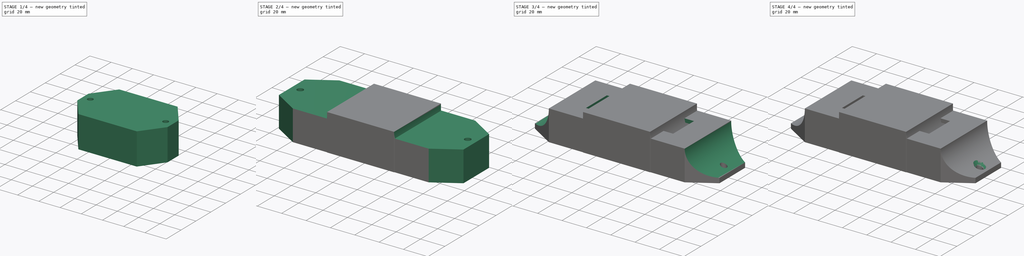
[diagram: build sequence overview — one tinted view per stage of 4, left to right]
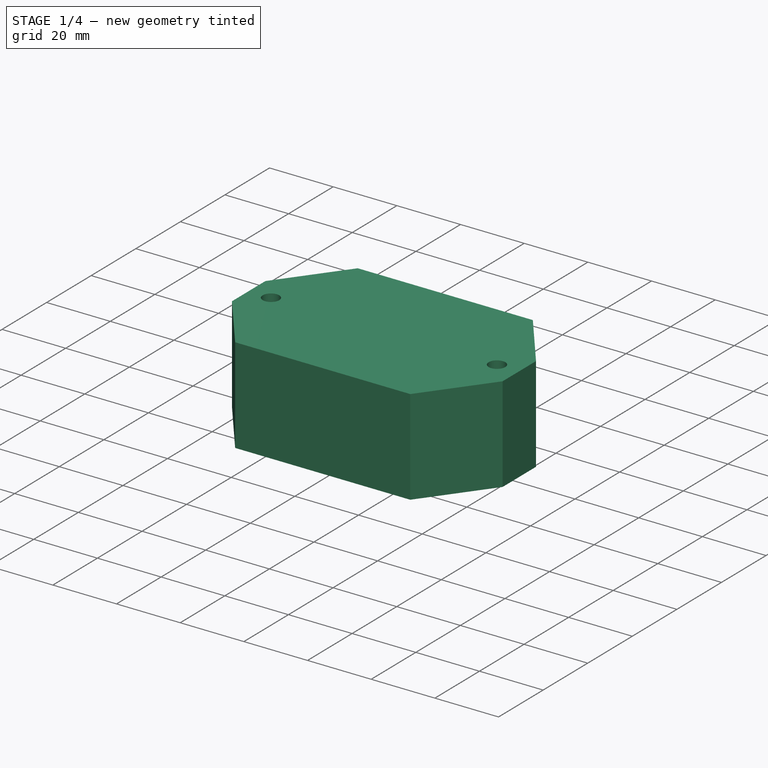
[diagram: stage 1 of 4 — iso view after this stage's code; geometry added in this stage tinted green]
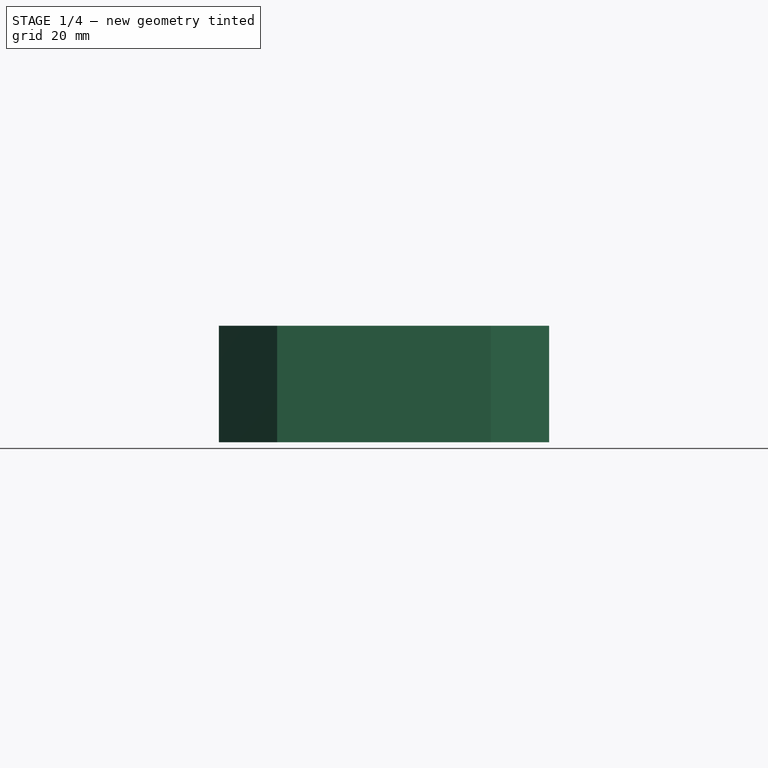
[diagram: stage 1 of 4 — front view after this stage's code; geometry added in this stage tinted green]
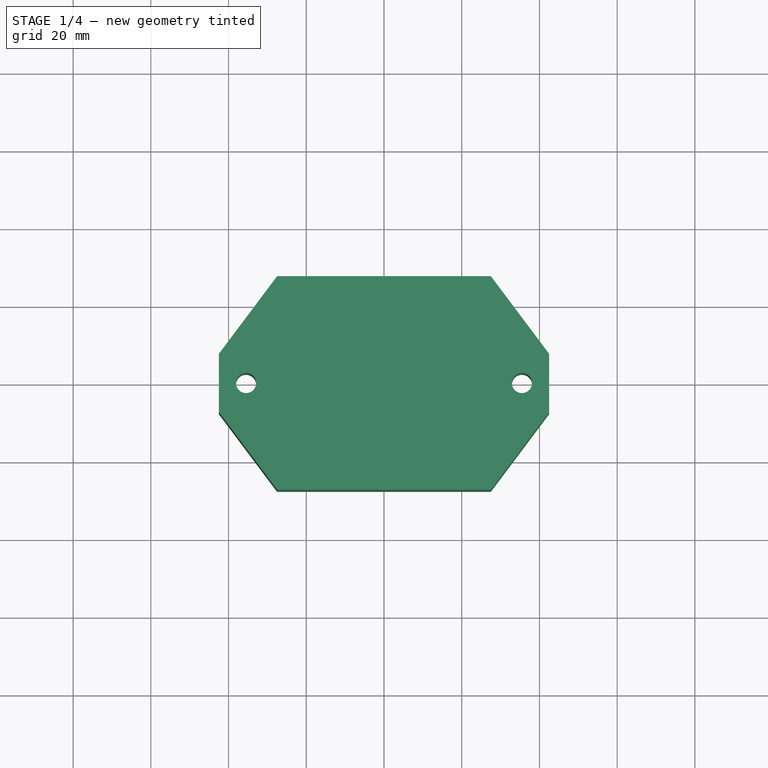
[diagram: stage 1 of 4 — top view after this stage's code; geometry added in this stage tinted green]
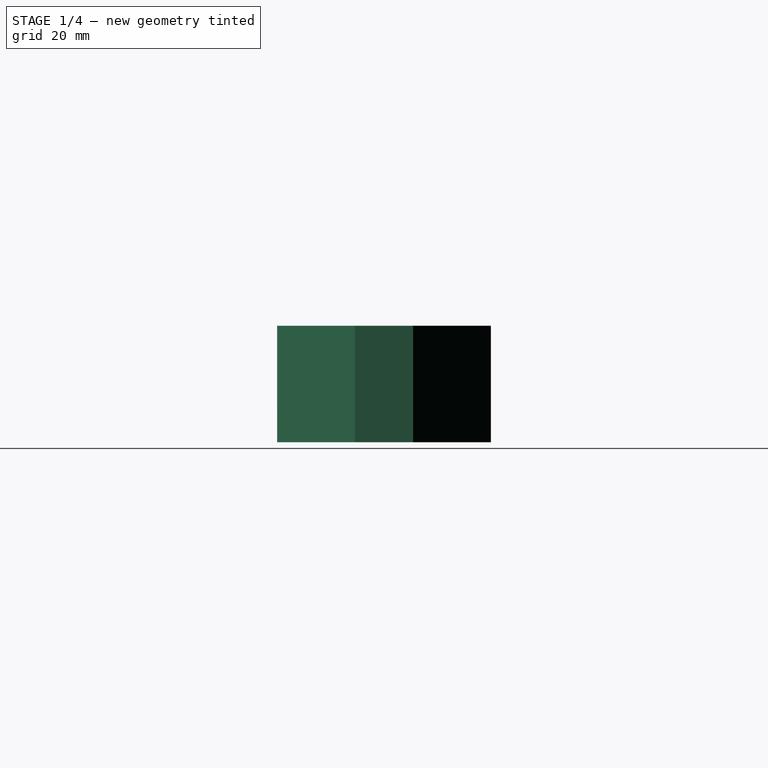
[diagram: stage 1 of 4 — right view after this stage's code; geometry added in this stage tinted green]
FCSTD DOCUMENT  (FreeCAD 1.0RUnknown)
Label: case
License: All rights reserved
LicenseURL: http://en.wikipedia.org/wiki/All_rights_reserved
objects: Sketcher::SketchObject×8, PartDesign::Pocket×5, PartDesign::Pad×3, PartDesign::Chamfer×2, PartDesign::Body×2, Spreadsheet::Sheet×1
note: 48 computed .brp shape members not serialized (recipe doc carries the construction recipe); baked Part::Feature solids carry a one-line shape summary decoded from their .brp

FEATURE [PartDesign::Body] Body  label="lcd"
  AllowCompound = false
  Group = -> [Sketch,Pad,Sketch001,Pocket,Sketch002,Pocket001,Sketch003,Pocket002,Sketch004,Pad001,Chamfer]
  Origin = -> Origin
  Tip = -> Chamfer
FEATURE [Sketcher::SketchObject] Sketch005
  ArcFitTolerance = 1e-06
  AttachmentSupport = -> [XY_Plane001]
  FullyConstrained = true
  MakeInternals = false
  MapMode = 5
  sketch-geometry (12):
    g0: LineSegment [constr] StartX=-27.5 StartY=27.5 StartZ=0 EndX=-27.5 EndY=-27.5 EndZ=0
    g1: LineSegment StartX=-27.5 StartY=-27.5 StartZ=0 EndX=27.5 EndY=-27.5 EndZ=0
    g2: LineSegment [constr] StartX=27.5 StartY=-27.5 StartZ=0 EndX=27.5 EndY=27.5 EndZ=0
    g3: LineSegment StartX=27.5 StartY=27.5 StartZ=0 EndX=-27.5 EndY=27.5 EndZ=0
    g4: LineSegment StartX=-27.5 StartY=27.5 StartZ=0 EndX=-42.5 EndY=7.5 EndZ=0
    g5: LineSegment StartX=-42.5 StartY=7.5 StartZ=0 EndX=-42.5 EndY=-7.5 EndZ=0
    g6: LineSegment StartX=-42.5 StartY=-7.5 StartZ=0 EndX=-27.5 EndY=-27.5 EndZ=0
    g7: LineSegment StartX=27.5 StartY=27.5 StartZ=0 EndX=42.5 EndY=7.5 EndZ=0
    g8: LineSegment StartX=42.5 StartY=7.5 StartZ=0 EndX=42.5 EndY=-7.5 EndZ=0
    g9: LineSegment StartX=42.5 StartY=-7.5 StartZ=0 EndX=27.5 EndY=-27.5 EndZ=0
    g10: Circle CenterX=-35.5 CenterY=0 CenterZ=0 NormalX=0 NormalY=0 NormalZ=1 AngleXU=0 Radius=2.6
    g11: Circle CenterX=35.5 CenterY=0 CenterZ=0 NormalX=0 NormalY=0 NormalZ=1 AngleXU=0 Radius=2.6
  constraints (31):
    c: Coincident(g0,g1)
    c: Coincident(g1,g2)
    c: Coincident(g2,g3)
    c: Coincident(g3,g0)
    c: Vertical(g0)
    c: Vertical(g2)
    c: Horizontal(g1)
    c: Horizontal(g3)
    c: Symmetric(g0,g1,g-1)
    c: Equal(g3,g0)
    c: DistanceX(g3,g3) = 55
    c: Coincident(g0,g4)
    c: Coincident(g4,g5)
    c: Coincident(g5,g6)
    c: Coincident(g6,g0)
    c: Coincident(g2,g7)
    c: Coincident(g7,g8)
    c: Coincident(g8,g9)
    c: Coincident(g9,g1)
    c: DistanceX(g4,g0) = 15
    c: Symmetric(g4,g5,g-1)
    c: Distance(g5,g5) = 15
    c: Equal(g4,g7)
    c: Symmetric(g7,g8,g-1)
    c: Equal(g8,g5)
    c: PointOnObject(g10,g-1)
    c: Equal(g10,g11)
    c: Diameter(g10) = 5.2
    c: DistanceX(g4,g10) = 7
    c: Symmetric(g10,g11,g-1)
    c: DistanceY(g0,g0) = 55
FEATURE [PartDesign::Pad] Pad002  label="acc_case"
  Direction = (0,0,1)
  Length = 30
  Length2 = 10
  Profile = -> Sketch005
  ReferenceAxis = -> Sketch005 [N_Axis]
  Suppressed = false
  Type = 0
FEATURE [Sketcher::SketchObject] Sketch006
  ArcFitTolerance = 1e-06
  AttachmentSupport = -> [XY_Plane001]
  ExternalGeometry = -> [Sketch005]
  FullyConstrained = true
  MakeInternals = false
  MapMode = 5
  sketch-geometry (4):
    g0: LineSegment StartX=-25.5 StartY=25.5 StartZ=0 EndX=-25.5 EndY=-25.5 EndZ=0
    g1: LineSegment StartX=-25.5 StartY=-25.5 StartZ=0 EndX=25.5 EndY=-25.5 EndZ=0
    g2: LineSegment StartX=25.5 StartY=-25.5 StartZ=0 EndX=25.5 EndY=25.5 EndZ=0
    g3: LineSegment StartX=25.5 StartY=25.5 StartZ=0 EndX=-25.5 EndY=25.5 EndZ=0
  constraints (11):
    c: Coincident(g0,g1)
    c: Coincident(g1,g2)
    c: Coincident(g2,g3)
    c: Coincident(g3,g0)
    c: Vertical(g0)
    c: Vertical(g2)
    c: Horizontal(g1)
    c: Horizontal(g3)
    c: Symmetric(g0,g1,g-1)
    c: DistanceX(g-3,g0) = 2
    c: DistanceY(g0,g-3) = 2
FEATURE [PartDesign::Pocket] Pocket003
  BaseFeature = -> Pad002
  Direction = (0,0,-1)
  Length = 28
  Length2 = 5
  Profile = -> Sketch006
  ReferenceAxis = -> Sketch006 [N_Axis]
  Reversed = true
  Suppressed = false
  Type = 0
  expr: Length = <<acc_case>>.Length - 2 mm
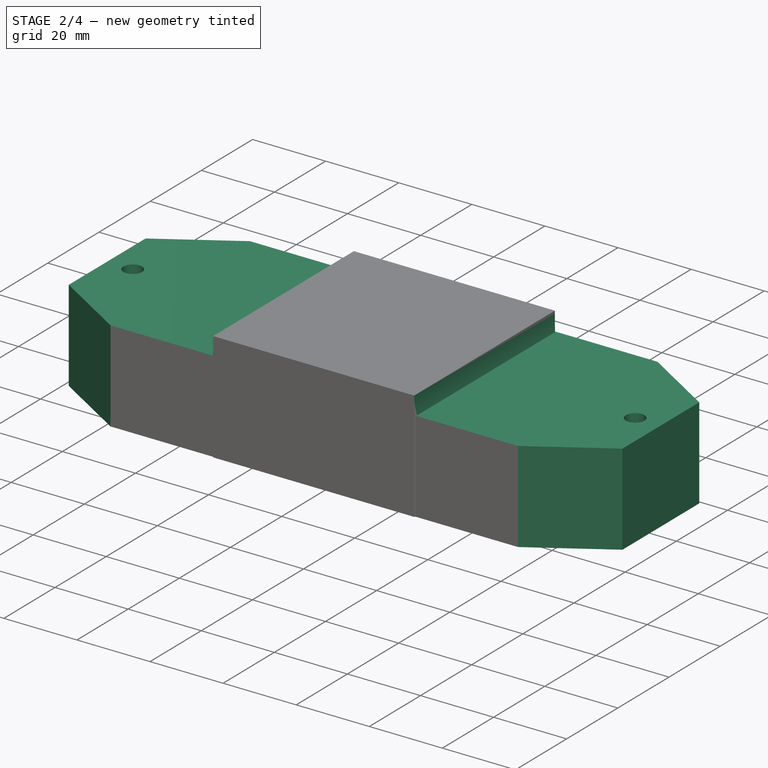
[diagram: stage 2 of 4 — iso view after this stage's code; geometry added in this stage tinted green]
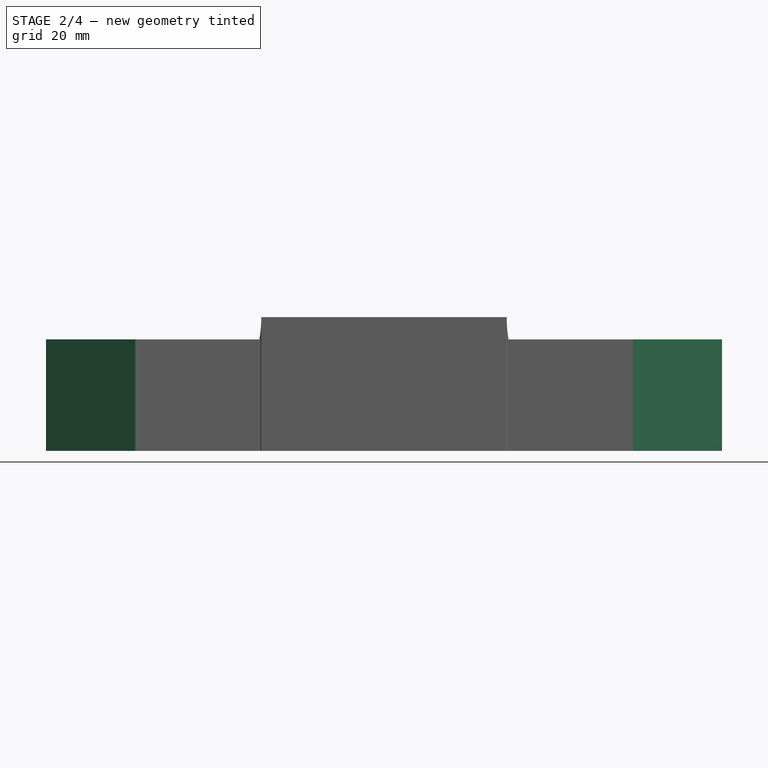
[diagram: stage 2 of 4 — front view after this stage's code; geometry added in this stage tinted green]
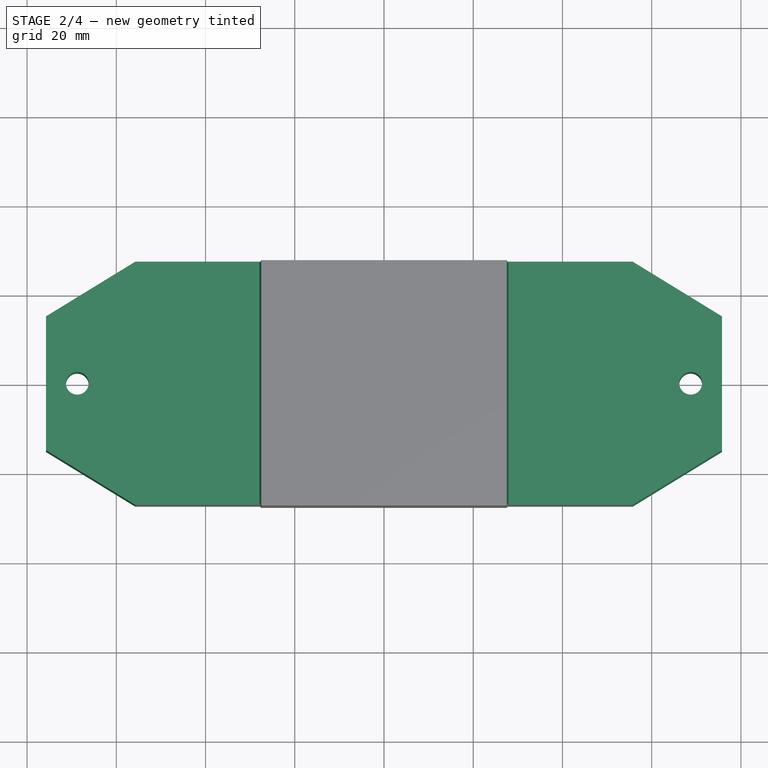
[diagram: stage 2 of 4 — top view after this stage's code; geometry added in this stage tinted green]
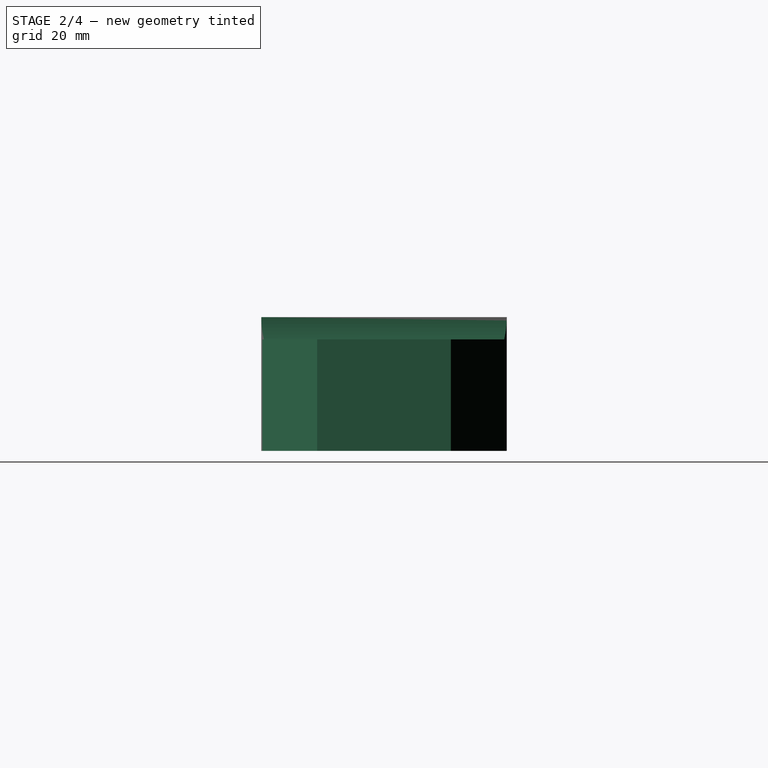
[diagram: stage 2 of 4 — right view after this stage's code; geometry added in this stage tinted green]
FEATURE [Sketcher::SketchObject] Sketch
  ArcFitTolerance = 1e-06
  AttachmentSupport = -> [XY_Plane]
  FullyConstrained = true
  MakeInternals = false
  MapMode = 5
  expr: Constraints[15] = <<Spreadsheet>>.mount_length
  expr: Constraints[17] = <<Spreadsheet>>.mount_height
  expr: Constraints[22] = <<Spreadsheet>>.mount_length
  expr: Constraints[23] = <<Spreadsheet>>.mount_height
  expr: Constraints[26] = <<Spreadsheet>>.screw_diameter
  expr: Constraints[27] = <<Spreadsheet>>.screw_distance_edge
  expr: Constraints[29] = <<Spreadsheet>>.screw_diameter
  expr: Constraints[30] = <<Spreadsheet>>.screw_distance_edge
  expr: Constraints[8] = <<Spreadsheet>>.box_length
  expr: Constraints[9] = <<Spreadsheet>>.box_height
  sketch-geometry (12):
    g0: LineSegment [constr] StartX=-55.75 StartY=27.25 StartZ=0 EndX=-55.75 EndY=-27.25 EndZ=0
    g1: LineSegment StartX=-55.75 StartY=-27.25 StartZ=0 EndX=55.75 EndY=-27.25 EndZ=0
    g2: LineSegment [constr] StartX=55.75 StartY=-27.25 StartZ=0 EndX=55.75 EndY=27.25 EndZ=0
    g3: LineSegment StartX=55.75 StartY=27.25 StartZ=0 EndX=-55.75 EndY=27.25 EndZ=0
    g4: LineSegment StartX=55.75 StartY=27.25 StartZ=0 EndX=75.75 EndY=15 EndZ=0
    g5: LineSegment StartX=75.75 StartY=15 StartZ=0 EndX=75.75 EndY=-15 EndZ=0
    g6: LineSegment StartX=75.75 StartY=-15 StartZ=0 EndX=55.75 EndY=-27.25 EndZ=0
    g7: LineSegment StartX=-55.75 StartY=27.25 StartZ=0 EndX=-75.75 EndY=15 EndZ=0
    g8: LineSegment StartX=-75.75 StartY=15 StartZ=0 EndX=-75.75 EndY=-15 EndZ=0
    g9: LineSegment StartX=-75.75 StartY=-15 StartZ=0 EndX=-55.75 EndY=-27.25 EndZ=0
    g10: Circle CenterX=-68.75 CenterY=0 CenterZ=0 NormalX=0 NormalY=0 NormalZ=1 AngleXU=0 Radius=2.55
    g11: Circle CenterX=68.75 CenterY=0 CenterZ=0 NormalX=0 NormalY=0 NormalZ=1 AngleXU=0 Radius=2.55
  constraints (31):
    c: Coincident(g0,g1)
    c: Coincident(g1,g2)
    c: Coincident(g2,g3)
    c: Coincident(g3,g0)
    c: Vertical(g0)
    c: Vertical(g2)
    c: Horizontal(g1)
    c: Horizontal(g3)
    c: DistanceX(g3,g3) = 111.5
    c: DistanceY(g0,g0) = 54.5
    c: Symmetric(g0,g1,g-1)
    c: Coincident(g5,g4)
    c: Coincident(g6,g5)
    c: Coincident(g6,g1)
    c: Coincident(g4,g2)
    c: DistanceX(g2,g4) = 20
    c: Symmetric(g4,g5,g-1)
    c: DistanceY(g5,g5) = 30
    c: Coincident(g0,g7)
    c: Coincident(g7,g8)
    c: Coincident(g8,g9)
    c: Symmetric(g7,g8,g-1)
    c: DistanceX(g7,g0) = 20
    c: DistanceY(g8,g8) = 30
    c: Coincident(g9,g0)
    c: PointOnObject(g10,g-1)
    c: Diameter(g10) = 5.1
    c: Distance(g10,g8) = 7
    c: PointOnObject(g11,g-1)
    c: Diameter(g11) = 5.1
    c: Distance(g11,g5) = 7
FEATURE [Spreadsheet::Sheet] Spreadsheet
  cells = A1='space between sides and lcd; B1=20; C1=15; B4='lenght; C4='height; D4='depth; A5='display screen; B5(lcd_length)=71.5; C5(lcd_height)=24.5; A6='box; B6(box_length)==B5 + 2 * B1; C6(box_height)==C5 + 2 * C1; D6(box_depth)=25; A7='wall thickness; B7(thickness)=3; A8='mount; B8(mount_length)=20; C8(mount_height)=30; A9='screw diamter; B9(screw_diameter)=5.1; A10='screw distance from edge; B10(screw_distance_edge)=7; A11='screw pad; B11(screw_pad_length)=75; C11(screw_pad_height)=31; D11(screw_pad_depth)=7
FEATURE [PartDesign::Pad] Pad
  Direction = (0,0,1)
  Length = 25
  Length2 = 10
  Profile = -> Sketch
  ReferenceAxis = -> Sketch [N_Axis]
  Suppressed = false
  Type = 0
  expr: Length = <<Spreadsheet>>.box_depth
FEATURE [Sketcher::SketchObject] Sketch007
  ArcFitTolerance = 1e-06
  AttachmentSupport = -> [XZ_Plane001]
  ExternalGeometry = -> [Pocket003]
  FullyConstrained = true
  MakeInternals = false
  MapMode = 5
  Placement = pos=(0,0,0) rot=(1,0,0;1.5708rad)
  sketch-geometry (4):
    g0: GeomPoint X=-42.5 Y=4 Z=0
    g1: GeomPoint X=42.5 Y=4 Z=0
    g2: Circle CenterX=-57.5333 CenterY=30 CenterZ=0 NormalX=0 NormalY=0 NormalZ=1 AngleXU=0 Radius=30.0333
    g3: Circle CenterX=57.5333 CenterY=30 CenterZ=0 NormalX=0 NormalY=0 NormalZ=1 AngleXU=0 Radius=30.0333
  constraints (9):
    c: PointOnObject(g0,g-3)
    c: PointOnObject(g0,g2)
    c: PointOnObject(g-5,g2)
    c: Distance(g0,g-3) = 4
    c: Symmetric(g0,g1,g-2)
    c: PointOnObject(g1,g3)
    c: PointOnObject(g-7,g3)
    c: Equal(g3,g2)
    c: Tangent(g2,g-4)
FEATURE [PartDesign::Pocket] Pocket004
  BaseFeature = -> Pocket003
  Direction = (0,1,-2e-16)
  Length = 5
  Length2 = 5
  Midplane = true
  Profile = -> Sketch007
  ReferenceAxis = -> Sketch007 [N_Axis]
  Suppressed = false
  Type = 1
FEATURE [PartDesign::Chamfer] Chamfer001
  Angle = 45
  Base = -> Pocket004 [Edge31,Edge35]
  BaseFeature = -> Pocket004
  ChamferType = 0
  FlipDirection = false
  Refine = true
  Size = 1
  Size2 = 1
  SupportTransform = false
  Suppressed = false
  UseAllEdges = false
FEATURE [PartDesign::Body] Body001  label="acc"
  AllowCompound = false
  Group = -> [Sketch005,Pad002,Sketch006,Pocket003,Sketch007,Pocket004,Chamfer001]
  Origin = -> Origin001
  Tip = -> Chamfer001
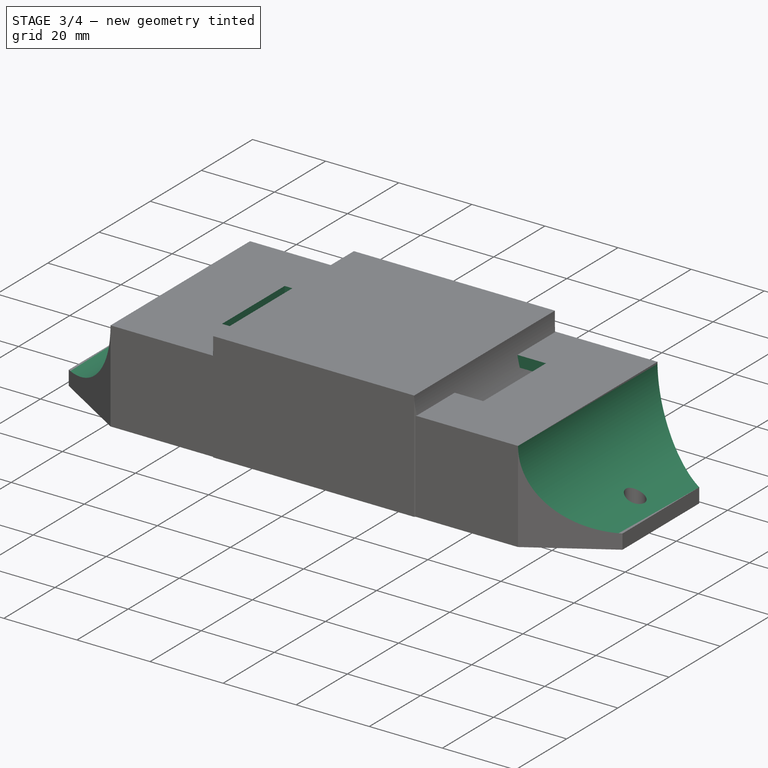
[diagram: stage 3 of 4 — iso view after this stage's code; geometry added in this stage tinted green]
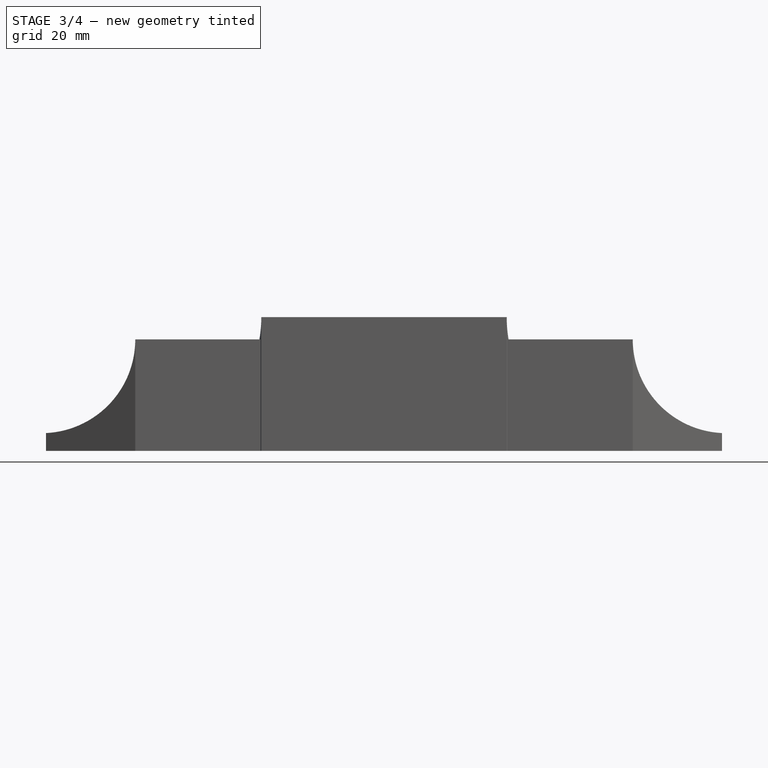
[diagram: stage 3 of 4 — front view after this stage's code; geometry added in this stage tinted green]
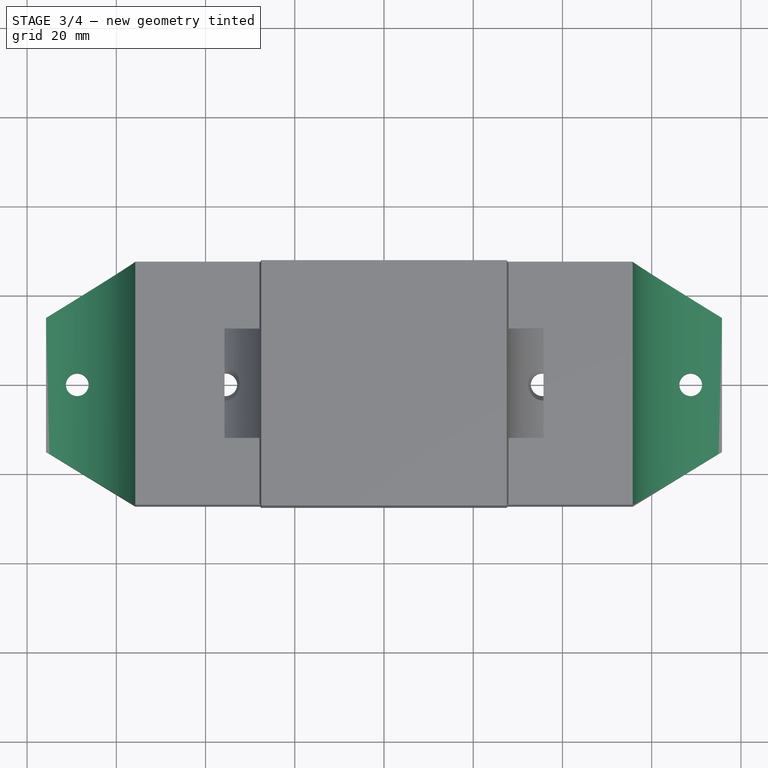
[diagram: stage 3 of 4 — top view after this stage's code; geometry added in this stage tinted green]
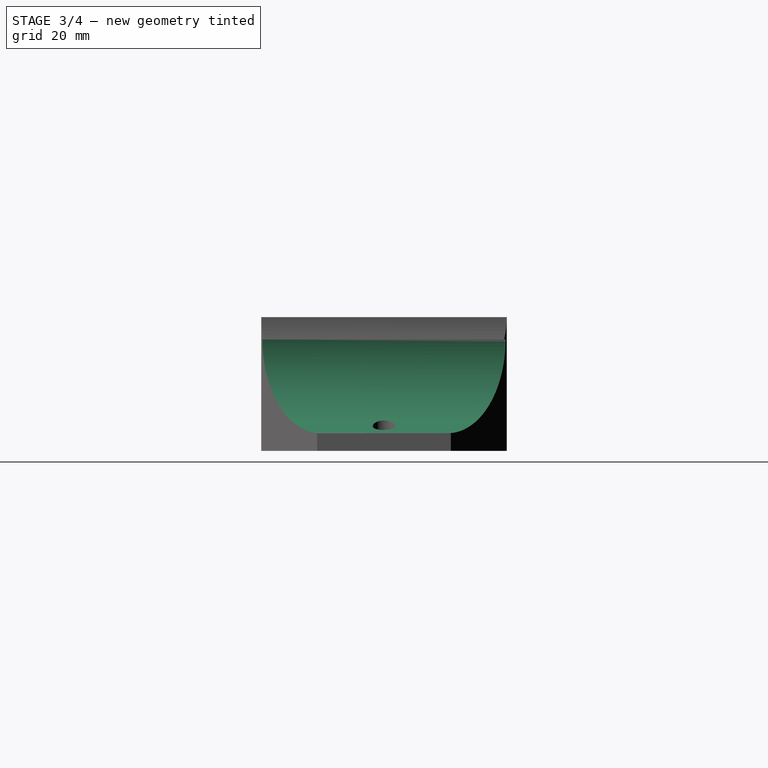
[diagram: stage 3 of 4 — right view after this stage's code; geometry added in this stage tinted green]
FEATURE [Sketcher::SketchObject] Sketch001
  ArcFitTolerance = 1e-06
  AttachmentSupport = -> [XZ_Plane]
  ExternalGeometry = -> [Pad]
  FullyConstrained = true
  MakeInternals = false
  MapMode = 5
  Placement = pos=(0,0,0) rot=(1,0,0;1.5708rad)
  sketch-geometry (4):
    g0: GeomPoint X=-75.75 Y=4 Z=0
    g1: Circle CenterX=-76.775 CenterY=25 CenterZ=0 NormalX=0 NormalY=0 NormalZ=1 AngleXU=0 Radius=21.025
    g2: GeomPoint X=75.75 Y=4 Z=0
    g3: Circle CenterX=76.775 CenterY=25 CenterZ=0 NormalX=0 NormalY=0 NormalZ=1 AngleXU=0 Radius=21.025
  constraints (9):
    c: PointOnObject(g0,g-5)
    c: DistanceY(g-5,g0) = 4
    c: PointOnObject(g0,g1)
    c: PointOnObject(g2,g-4)
    c: DistanceY(g-4,g2) = 4
    c: PointOnObject(g-7,g3)
    c: PointOnObject(g2,g3)
    c: Tangent(g-6,g1) = -1.5708
    c: Equal(g3,g1)
FEATURE [PartDesign::Pocket] Pocket
  BaseFeature = -> Pad
  Direction = (0,1,-2e-16)
  Length = 5
  Length2 = 5
  Midplane = true
  Profile = -> Sketch001
  ReferenceAxis = -> Sketch001 [N_Axis]
  Suppressed = false
  Type = 1
FEATURE [Sketcher::SketchObject] Sketch002
  ArcFitTolerance = 1e-06
  AttachmentSupport = -> [XY_Plane]
  ExternalGeometry = -> [Sketch]
  FullyConstrained = true
  MakeInternals = false
  MapMode = 5
  expr: Constraints[10] = <<Spreadsheet>>.thickness
  expr: Constraints[9] = <<Spreadsheet>>.thickness
  sketch-geometry (4):
    g0: LineSegment StartX=-52.75 StartY=24.25 StartZ=0 EndX=-52.75 EndY=-24.25 EndZ=0
    g1: LineSegment StartX=-52.75 StartY=-24.25 StartZ=0 EndX=52.75 EndY=-24.25 EndZ=0
    g2: LineSegment StartX=52.75 StartY=-24.25 StartZ=0 EndX=52.75 EndY=24.25 EndZ=0
    g3: LineSegment StartX=52.75 StartY=24.25 StartZ=0 EndX=-52.75 EndY=24.25 EndZ=0
  constraints (11):
    c: Coincident(g0,g1)
    c: Coincident(g1,g2)
    c: Coincident(g2,g3)
    c: Coincident(g3,g0)
    c: Vertical(g0)
    c: Vertical(g2)
    c: Horizontal(g1)
    c: Horizontal(g3)
    c: Symmetric(g0,g1,g-1)
    c: DistanceY(g0,g-3) = 3
    c: DistanceX(g-3,g0) = 3
FEATURE [PartDesign::Pocket] Pocket001
  BaseFeature = -> Pocket
  Direction = (0,0,-1)
  Length = 22
  Length2 = 5
  Profile = -> Sketch002
  ReferenceAxis = -> Sketch002 [N_Axis]
  Reversed = true
  Suppressed = false
  Type = 0
  expr: Length = <<Spreadsheet>>.box_depth - <<Spreadsheet>>.thickness
FEATURE [Sketcher::SketchObject] Sketch003
  ArcFitTolerance = 1e-06
  AttachmentSupport = -> [XY_Plane]
  FullyConstrained = true
  MakeInternals = false
  MapMode = 5
  expr: Constraints[10] = <<Spreadsheet>>.lcd_length
  expr: Constraints[9] = <<Spreadsheet>>.lcd_height
  sketch-geometry (4):
    g0: LineSegment StartX=-35.75 StartY=12.25 StartZ=0 EndX=-35.75 EndY=-12.25 EndZ=0
    g1: LineSegment StartX=-35.75 StartY=-12.25 StartZ=0 EndX=35.75 EndY=-12.25 EndZ=0
    g2: LineSegment StartX=35.75 StartY=-12.25 StartZ=0 EndX=35.75 EndY=12.25 EndZ=0
    g3: LineSegment StartX=35.75 StartY=12.25 StartZ=0 EndX=-35.75 EndY=12.25 EndZ=0
  constraints (11):
    c: Coincident(g0,g1)
    c: Coincident(g1,g2)
    c: Coincident(g2,g3)
    c: Coincident(g3,g0)
    c: Vertical(g0)
    c: Vertical(g2)
    c: Horizontal(g1)
    c: Horizontal(g3)
    c: Symmetric(g0,g1,g-1)
    c: DistanceY(g0,g0) = 24.5
    c: DistanceX(g3,g3) = 71.5
FEATURE [PartDesign::Pocket] Pocket002
  BaseFeature = -> Pocket001
  Direction = (0,0,-1)
  Length = 5
  Length2 = 5
  Profile = -> Sketch003
  ReferenceAxis = -> Sketch003 [N_Axis]
  Reversed = true
  Suppressed = false
  Type = 1
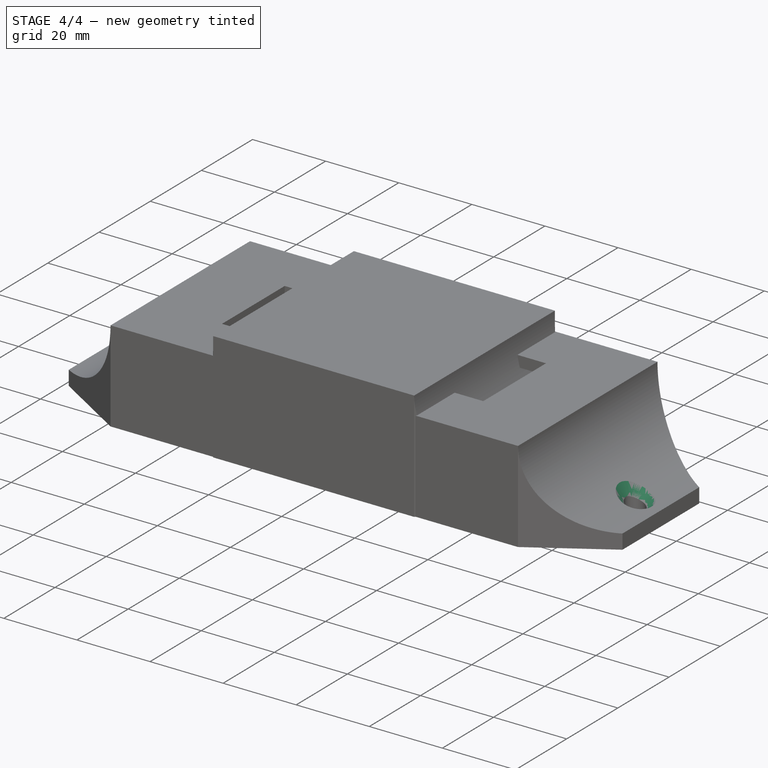
[diagram: stage 4 of 4 — iso view after this stage's code; geometry added in this stage tinted green]
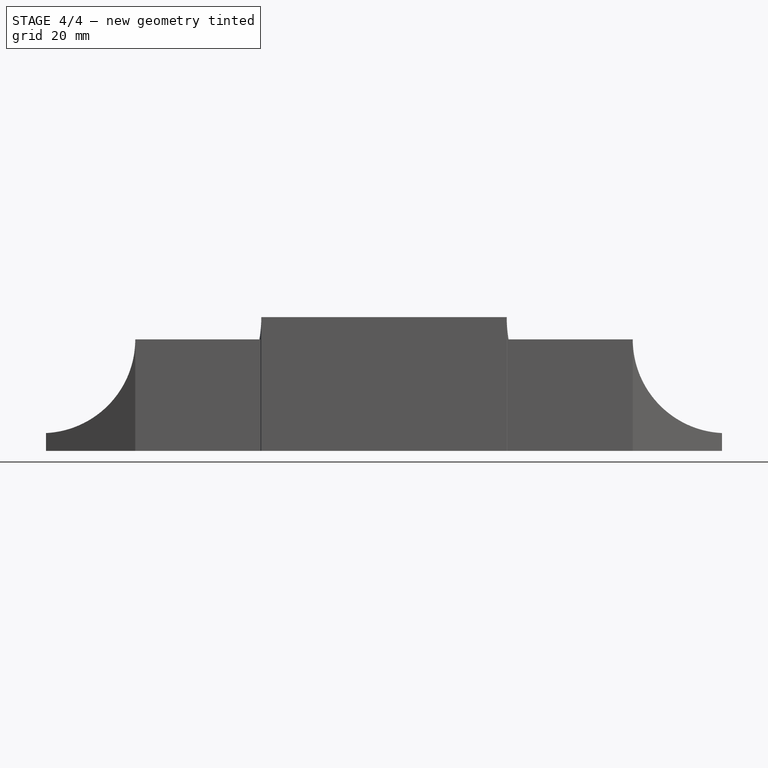
[diagram: stage 4 of 4 — front view after this stage's code; geometry added in this stage tinted green]
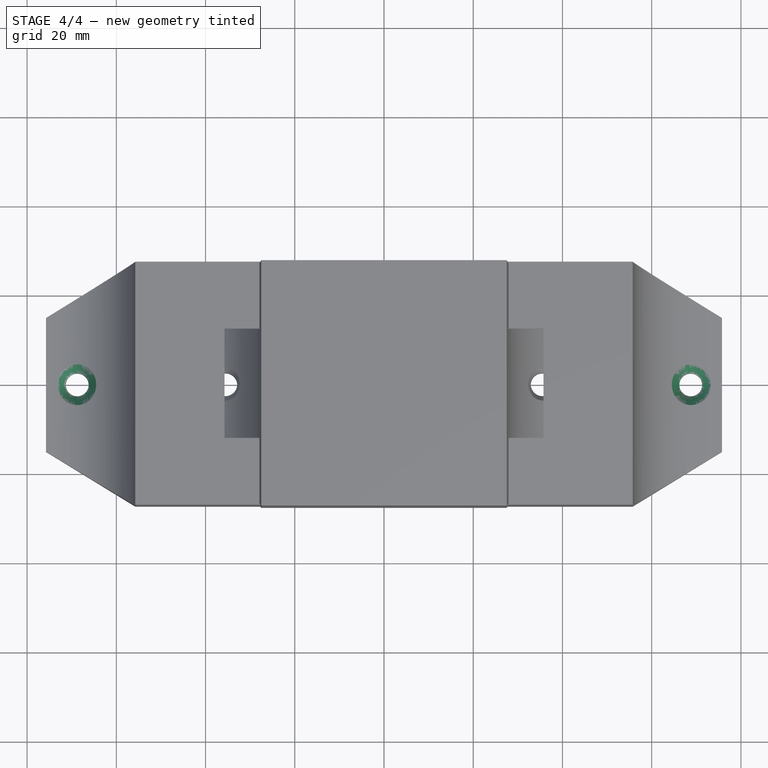
[diagram: stage 4 of 4 — top view after this stage's code; geometry added in this stage tinted green]
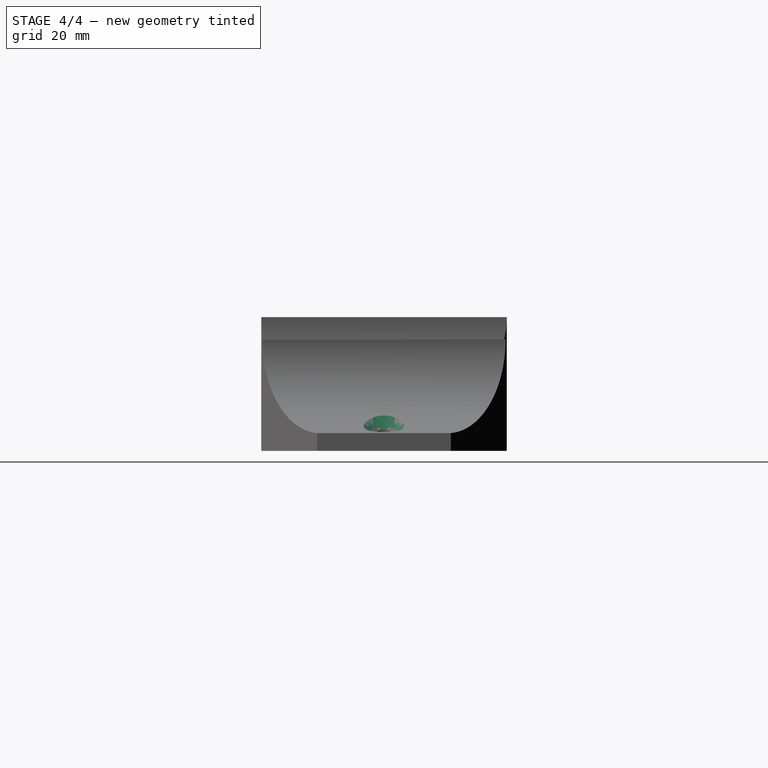
[diagram: stage 4 of 4 — right view after this stage's code; geometry added in this stage tinted green]
FEATURE [Sketcher::SketchObject] Sketch004
  ArcFitTolerance = 1e-06
  AttachmentOffset = pos=(0,0,25) rot=(0,0,1;0rad)
  AttachmentSupport = -> [XY_Plane]
  FullyConstrained = true
  MakeInternals = false
  MapMode = 5
  Placement = pos=(0,0,25) rot=(0,0,1;0rad)
  expr: .AttachmentOffset.Base.z = <<Spreadsheet>>.box_depth
  expr: Constraints[3] = <<Spreadsheet>>.screw_pad_length
  expr: Constraints[4] = <<Spreadsheet>>.screw_pad_height
  sketch-geometry (8):
    g0: Circle CenterX=-37.5 CenterY=15.5 CenterZ=0 NormalX=0 NormalY=0 NormalZ=1 AngleXU=0 Radius=3
    g1: Circle CenterX=-37.5 CenterY=-15.5 CenterZ=0 NormalX=0 NormalY=0 NormalZ=1 AngleXU=0 Radius=3
    g2: Circle CenterX=37.5 CenterY=-15.5 CenterZ=0 NormalX=0 NormalY=0 NormalZ=1 AngleXU=0 Radius=3
    g3: Circle CenterX=37.5 CenterY=15.5 CenterZ=0 NormalX=0 NormalY=0 NormalZ=1 AngleXU=0 Radius=3
    g4: Circle CenterX=-37.5 CenterY=15.5 CenterZ=0 NormalX=0 NormalY=0 NormalZ=1 AngleXU=0 Radius=1
    g5: Circle CenterX=-37.5 CenterY=-15.5 CenterZ=0 NormalX=0 NormalY=0 NormalZ=1 AngleXU=0 Radius=1
    g6: Circle CenterX=37.5 CenterY=15.5 CenterZ=0 NormalX=0 NormalY=0 NormalZ=1 AngleXU=0 Radius=1
    g7: Circle CenterX=37.5 CenterY=-15.5 CenterZ=0 NormalX=0 NormalY=0 NormalZ=1 AngleXU=0 Radius=1
  constraints (19):
    c: Equal(g3,g0)
    c: Equal(g0,g1)
    c: Equal(g1,g2)
    c: DistanceX(g0,g3) = 75
    c: DistanceY(g1,g0) = 31
    c: Vertical(g0,g1)
    c: Horizontal(g0,g3)
    c: Horizontal(g1,g2)
    c: Vertical(g2,g3)
    c: Symmetric(g0,g2,g-1)
    c: Diameter(g0) = 6
    c: Coincident(g4,g0)
    c: Diameter(g4) = 2
    c: Coincident(g5,g1)
    c: Coincident(g6,g3)
    c: Coincident(g7,g2)
    c: Equal(g7,g6)
    c: Equal(g6,g4)
    c: Equal(g4,g5)
FEATURE [PartDesign::Pad] Pad001
  BaseFeature = -> Pocket002
  Direction = (0,0,1)
  Length = 7
  Length2 = 10
  Profile = -> Sketch004
  ReferenceAxis = -> Sketch004 [N_Axis]
  Reversed = true
  Suppressed = false
  Type = 0
  expr: Length = <<Spreadsheet>>.screw_pad_depth
FEATURE [PartDesign::Chamfer] Chamfer
  Angle = 45
  Base = -> Pad001 [Edge40,Edge36]
  BaseFeature = -> Pad001
  ChamferType = 0
  FlipDirection = false
  Size = 2
  Size2 = 1
  SupportTransform = false
  Suppressed = false
  UseAllEdges = false
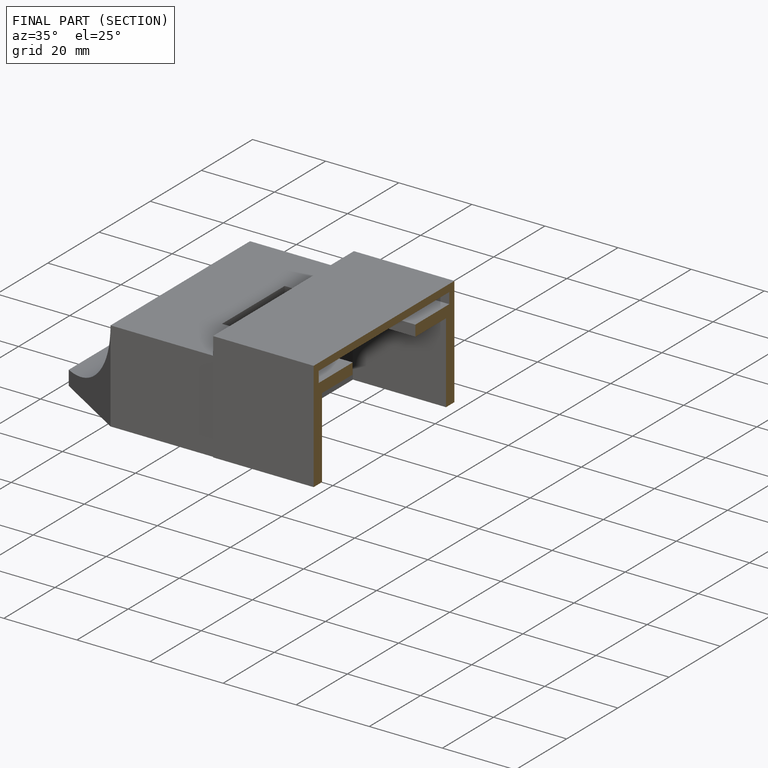
[diagram: finished part — half-section view (interior)]
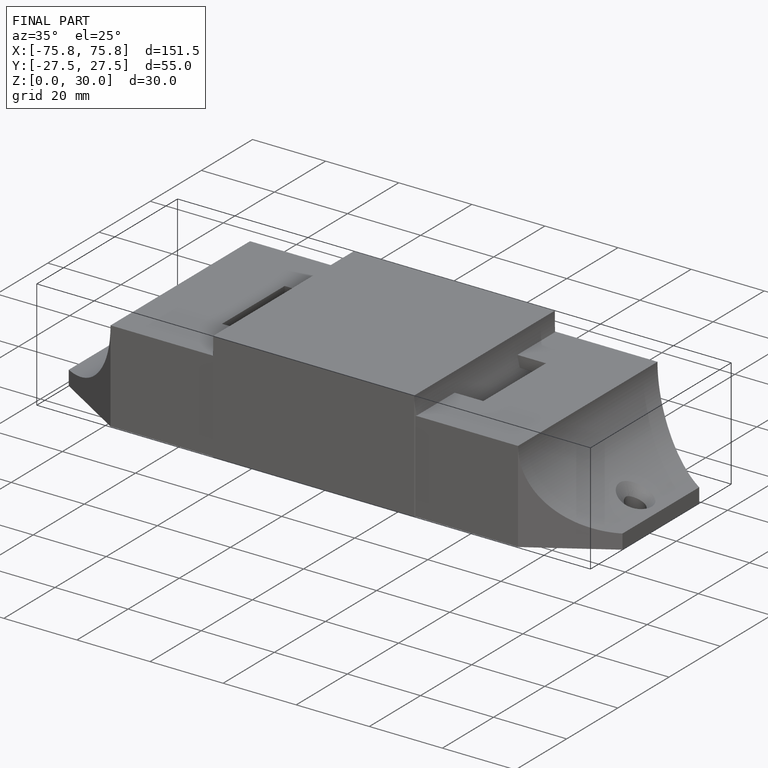
[diagram: finished part — iso view with bounding-box wireframe]
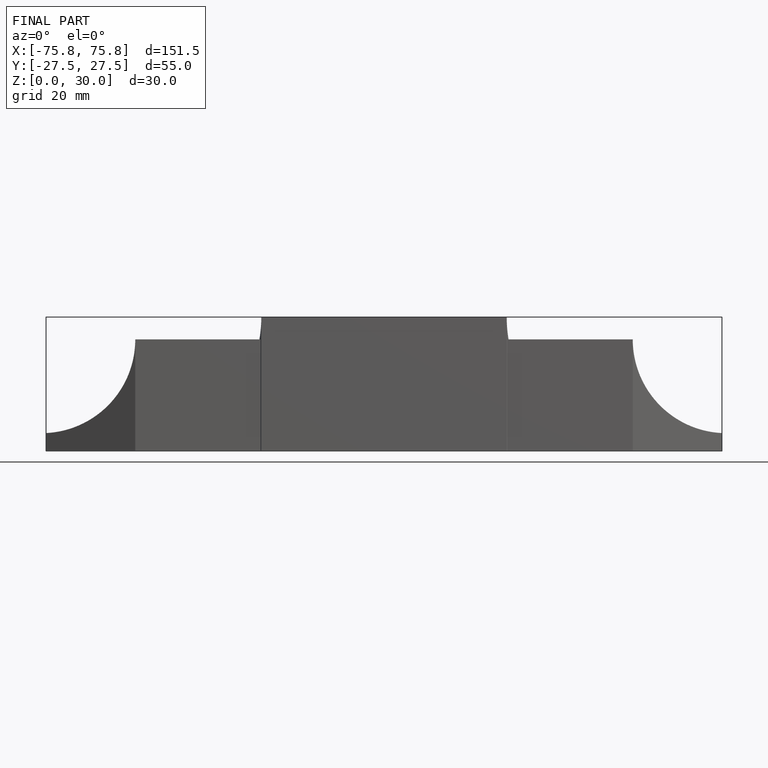
[diagram: finished part — front view with bounding-box wireframe]
